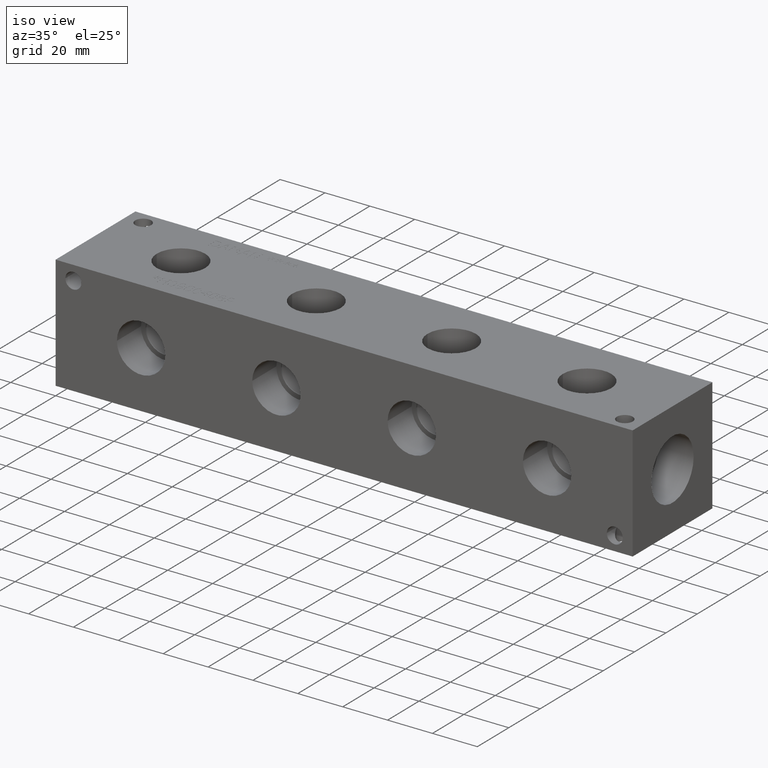
[diagram: clean part render]
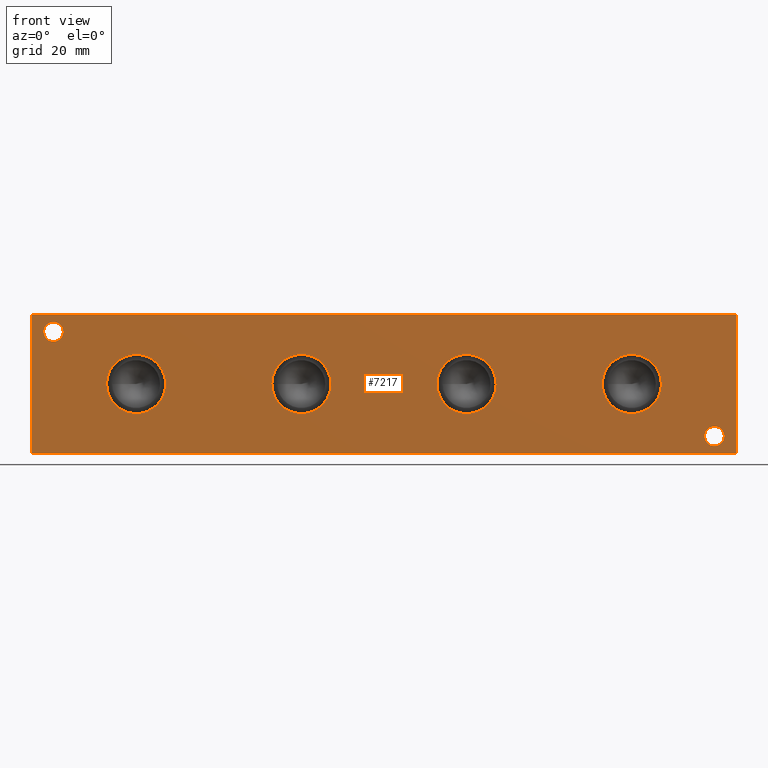
[diagram: tour spotlight — one face highlighted and labeled with its STEP entity id]
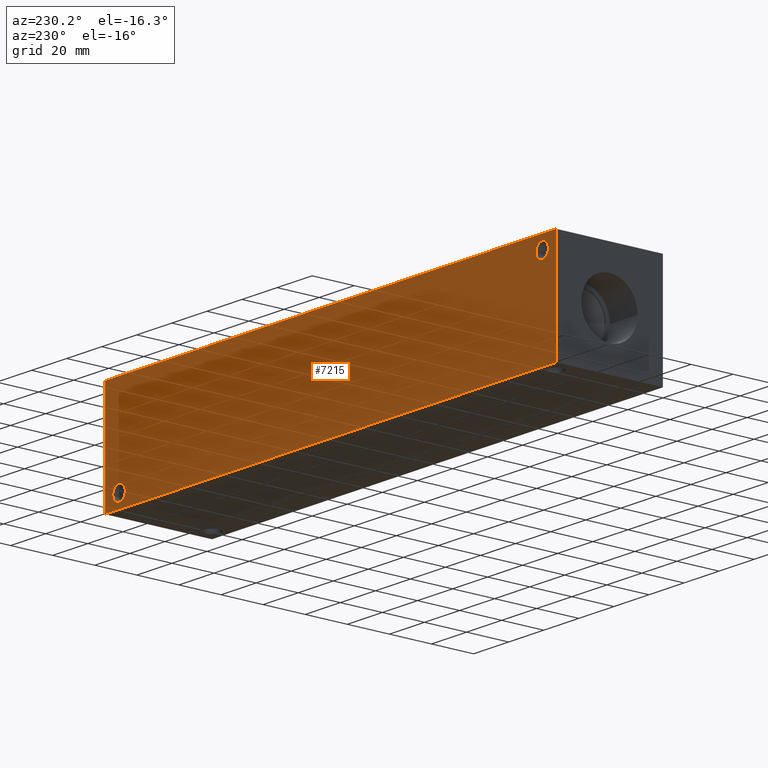
[diagram: tour spotlight — one face highlighted and labeled with its STEP entity id]
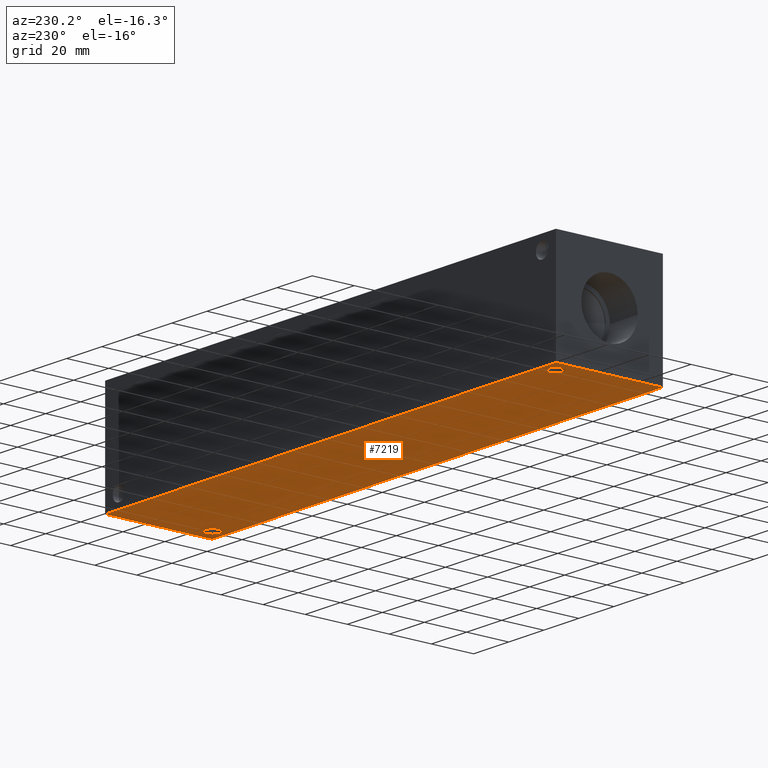
[diagram: tour spotlight — one face highlighted and labeled with its STEP entity id]
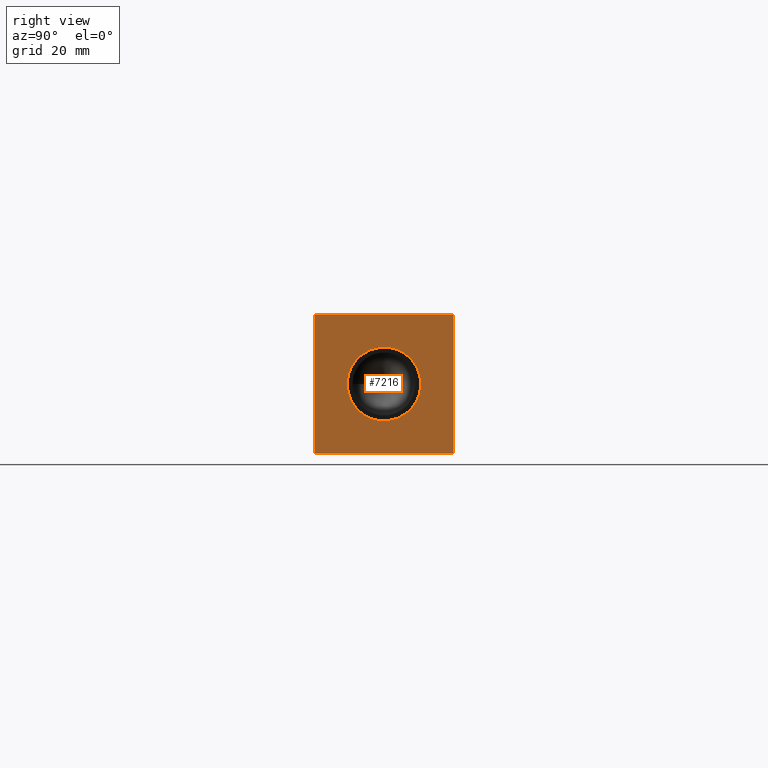
[diagram: tour spotlight — one face highlighted and labeled with its STEP entity id]
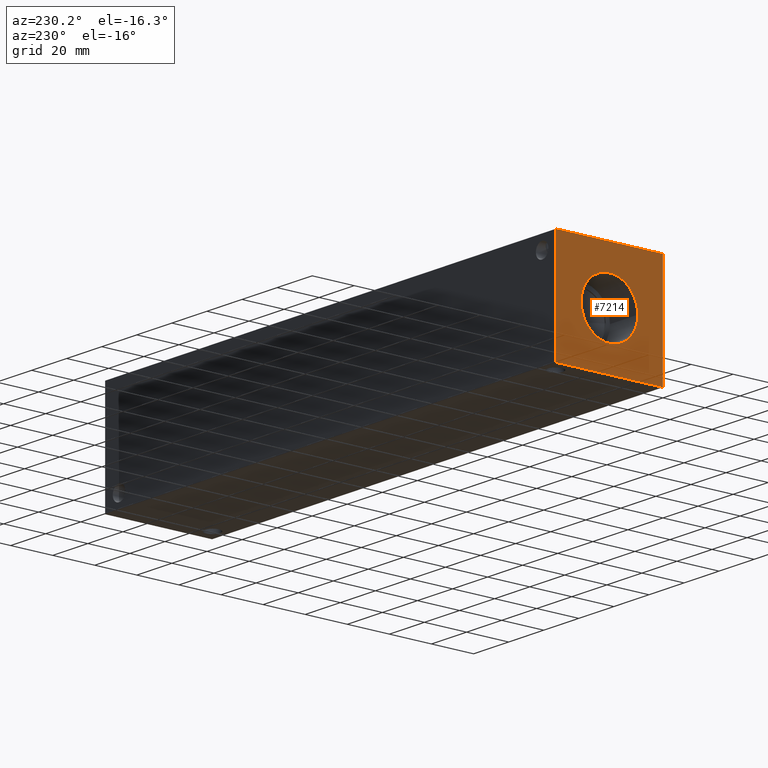
[diagram: tour spotlight — one face highlighted and labeled with its STEP entity id]
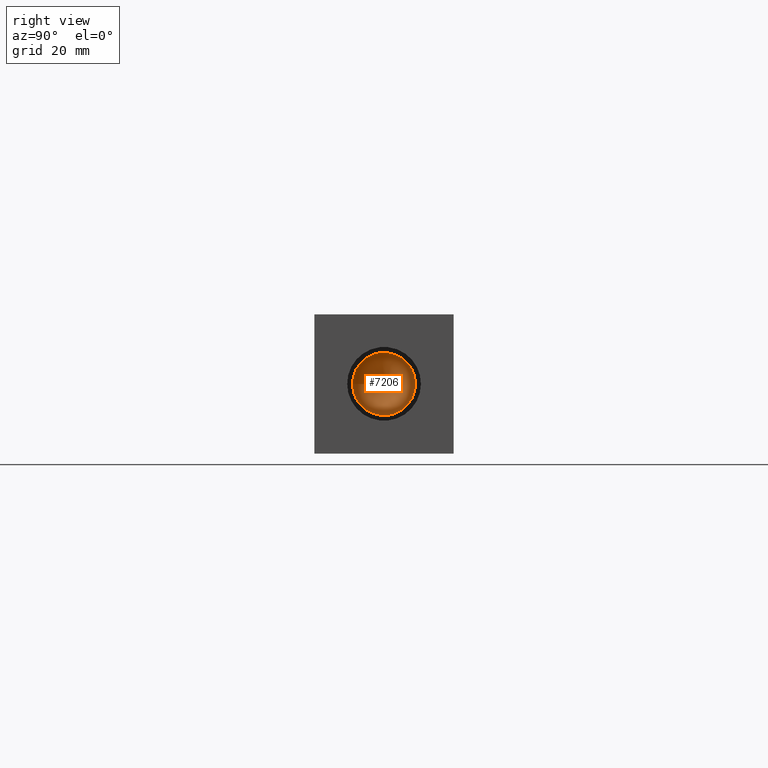
[diagram: tour spotlight — one face highlighted and labeled with its STEP entity id]
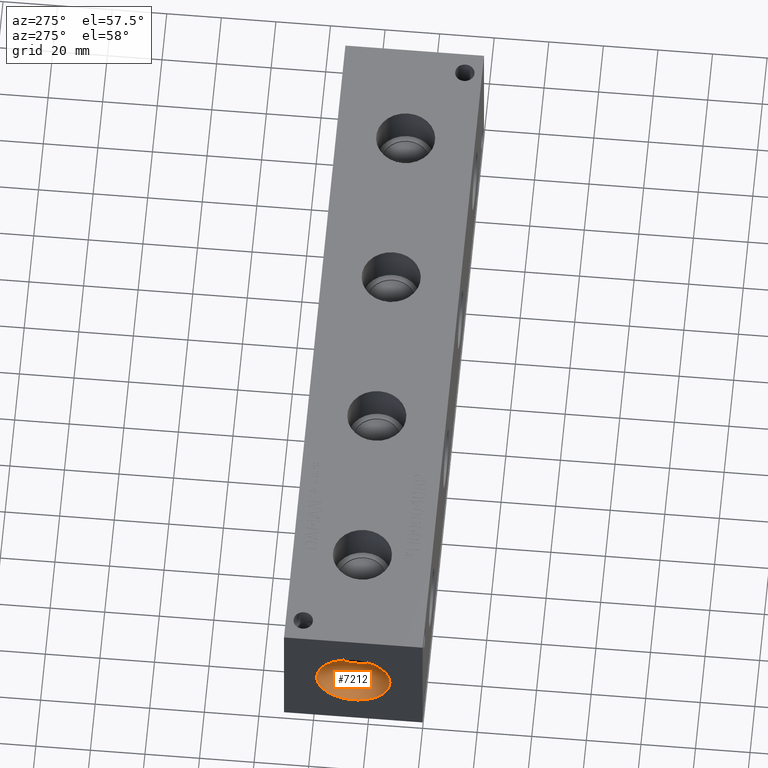
[diagram: tour spotlight — one face highlighted and labeled with its STEP entity id]
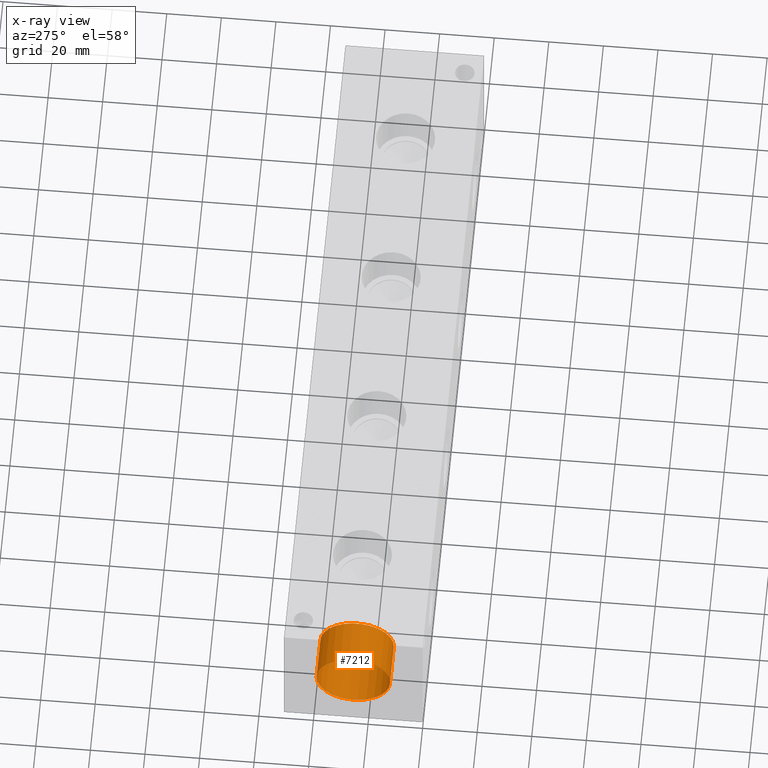
[diagram: x-ray of the same camera — body ghosted, this tour face saturated]
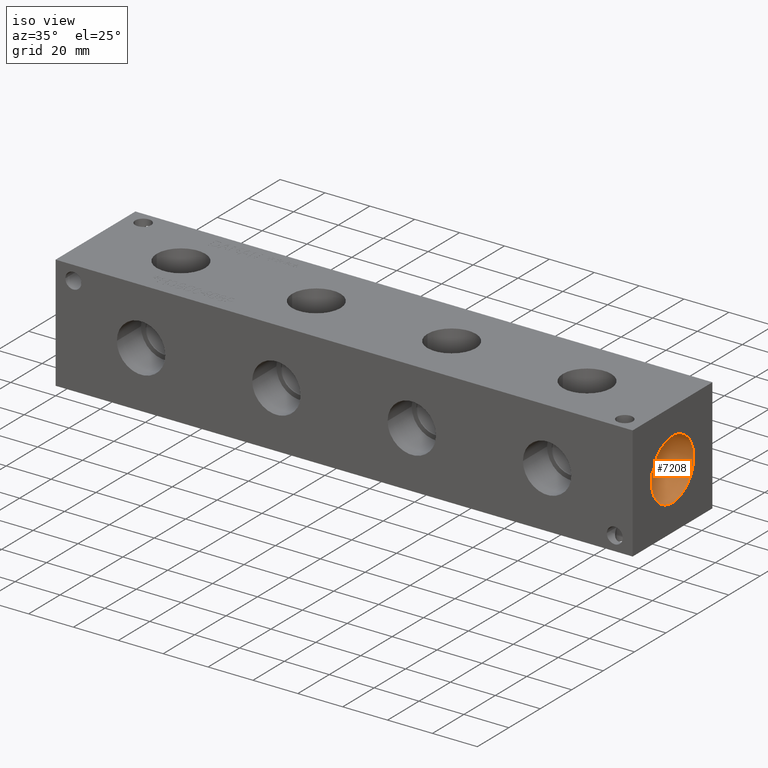
[diagram: tour spotlight — one face highlighted and labeled with its STEP entity id]
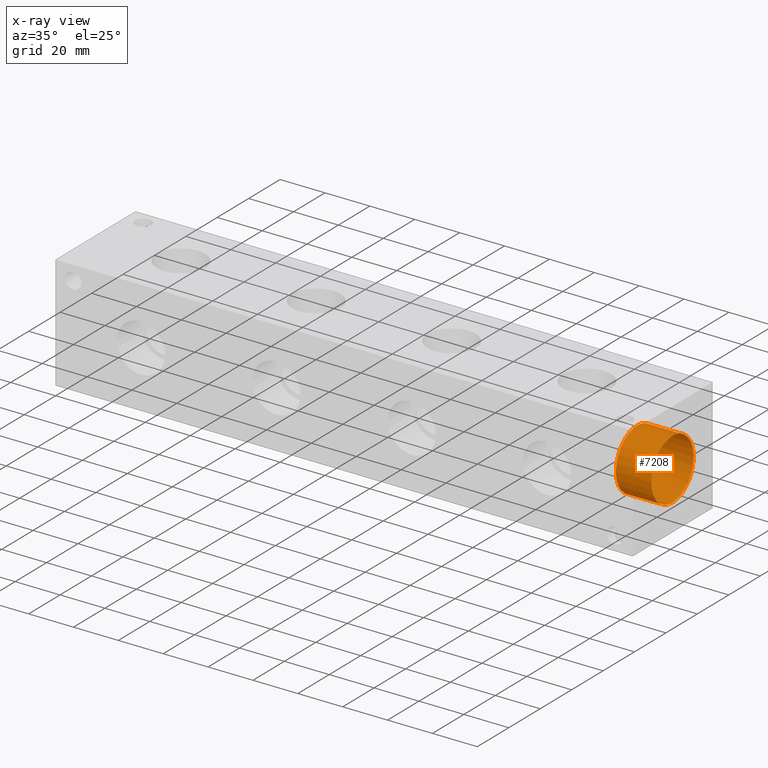
[diagram: x-ray of the same camera — body ghosted, this tour face saturated]
A machine part: a face-by-face anatomy tour. The part has 366 B-rep faces; the first image is the clean iso view, then the 8 largest visible faces are spotlighted one at a time (largest first), each with its STEP entity span.

Face 1 — front view, entity #7217. In plain terms, the highlighted planar face has unit normal (0, -1, 0).
Definition (entity closure, byte-faithful):
#76=CIRCLE('',#7457,10.795);
#77=CIRCLE('',#7458,10.795);
#83=CIRCLE('',#7469,10.795);
#84=CIRCLE('',#7470,10.795);
#90=CIRCLE('',#7481,10.795);
#91=CIRCLE('',#7482,10.795);
#97=CIRCLE('',#7493,10.795);
#98=CIRCLE('',#7494,10.795);
#112=CIRCLE('',#7517,3.5687);
#113=CIRCLE('',#7518,3.5687);
#115=CIRCLE('',#7526,3.5687);
#116=CIRCLE('',#7527,3.5687);
#197=FACE_BOUND('',#1212,.T.);
#198=FACE_BOUND('',#1213,.T.);
#199=FACE_BOUND('',#1214,.T.);
#200=FACE_BOUND('',#1215,.T.);
#201=FACE_BOUND('',#1216,.T.);
#202=FACE_BOUND('',#1217,.T.);
#428=PLANE('',#7589);
#794=FACE_OUTER_BOUND('',#1211,.T.);
#1211=EDGE_LOOP('',(#6426,#6427,#6428,#6429));
#1212=EDGE_LOOP('',(#6430,#6431));
#1213=EDGE_LOOP('',(#6432,#6433));
#1214=EDGE_LOOP('',(#6434,#6435));
#1215=EDGE_LOOP('',(#6436,#6437));
#1216=EDGE_LOOP('',(#6438,#6439));
#1217=EDGE_LOOP('',(#6440,#6441));
#1484=LINE('',#11139,#2177);
#1908=LINE('',#12339,#2601);
#1913=LINE('',#12348,#2606);
#1914=LINE('',#12350,#2607);
#2177=VECTOR('',#7990,10.);
#2601=VECTOR('',#8986,10.);
#2606=VECTOR('',#8995,10.);
#2607=VECTOR('',#8998,10.);
#3112=VERTEX_POINT('',#11137);
#3113=VERTEX_POINT('',#11138);
#3390=VERTEX_POINT('',#12080);
#3391=VERTEX_POINT('',#12081);
#3399=VERTEX_POINT('',#12105);
#3400=VERTEX_POINT('',#12106);
#3408=VERTEX_POINT('',#12130);
#3409=VERTEX_POINT('',#12131);
#3417=VERTEX_POINT('',#12155);
#3418=VERTEX_POINT('',#12156);
#3430=VERTEX_POINT('',#12200);
#3431=VERTEX_POINT('',#12201);
#3435=VERTEX_POINT('',#12216);
#3436=VERTEX_POINT('',#12217);
#3475=VERTEX_POINT('',#12337);
#3477=VERTEX_POINT('',#12346);
#3928=EDGE_CURVE('',#3112,#3113,#1484,.T.);
#4337=EDGE_CURVE('',#3390,#3391,#76,.T.);
#4338=EDGE_CURVE('',#3391,#3390,#77,.T.);
#4349=EDGE_CURVE('',#3399,#3400,#83,.T.);
#4350=EDGE_CURVE('',#3400,#3399,#84,.T.);
#4361=EDGE_CURVE('',#3408,#3409,#90,.T.);
#4362=EDGE_CURVE('',#3409,#3408,#91,.T.);
#4373=EDGE_CURVE('',#3417,#3418,#97,.T.);
#4374=EDGE_CURVE('',#3418,#3417,#98,.T.);
#4397=EDGE_CURVE('',#3430,#3431,#112,.T.);
#4398=EDGE_CURVE('',#3431,#3430,#113,.T.);
#4406=EDGE_CURVE('',#3435,#3436,#115,.T.);
#4407=EDGE_CURVE('',#3436,#3435,#116,.T.);
#4462=EDGE_CURVE('',#3475,#3112,#1908,.T.);
#4467=EDGE_CURVE('',#3477,#3113,#1913,.T.);
#4468=EDGE_CURVE('',#3475,#3477,#1914,.T.);
#6426=ORIENTED_EDGE('',*,*,#4468,.T.);
#6427=ORIENTED_EDGE('',*,*,#4467,.T.);
#6428=ORIENTED_EDGE('',*,*,#3928,.F.);
#6429=ORIENTED_EDGE('',*,*,#4462,.F.);
#6430=ORIENTED_EDGE('',*,*,#4337,.T.);
#6431=ORIENTED_EDGE('',*,*,#4338,.T.);
#6432=ORIENTED_EDGE('',*,*,#4349,.T.);
#6433=ORIENTED_EDGE('',*,*,#4350,.T.);
#6434=ORIENTED_EDGE('',*,*,#4361,.T.);
#6435=ORIENTED_EDGE('',*,*,#4362,.T.);
#6436=ORIENTED_EDGE('',*,*,#4373,.T.);
#6437=ORIENTED_EDGE('',*,*,#4374,.T.);
#6438=ORIENTED_EDGE('',*,*,#4397,.T.);
#6439=ORIENTED_EDGE('',*,*,#4398,.T.);
#6440=ORIENTED_EDGE('',*,*,#4406,.T.);
#6441=ORIENTED_EDGE('',*,*,#4407,.T.);
#7217=ADVANCED_FACE('',(#794,#197,#198,#199,#200,#201,#202),#428,.T.);
#7457=AXIS2_PLACEMENT_3D('',#12082,#8683,#8684);
#7458=AXIS2_PLACEMENT_3D('',#12083,#8685,#8686);
#7469=AXIS2_PLACEMENT_3D('',#12107,#8711,#8712);
#7470=AXIS2_PLACEMENT_3D('',#12108,#8713,#8714);
#7481=AXIS2_PLACEMENT_3D('',#12132,#8739,#8740);
#7482=AXIS2_PLACEMENT_3D('',#12133,#8741,#8742);
#7493=AXIS2_PLACEMENT_3D('',#12157,#8767,#8768);
#7494=AXIS2_PLACEMENT_3D('',#12158,#8769,#8770);
#7517=AXIS2_PLACEMENT_3D('',#12202,#8823,#8824);
#7518=AXIS2_PLACEMENT_3D('',#12203,#8825,#8826);
#7526=AXIS2_PLACEMENT_3D('',#12218,#8843,#8844);
#7527=AXIS2_PLACEMENT_3D('',#12219,#8845,#8846);
#7589=AXIS2_PLACEMENT_3D('',#12349,#8996,#8997);
#7990=DIRECTION('',(1.,0.,0.));
#8683=DIRECTION('center_axis',(0.,1.,0.));
#8684=DIRECTION('ref_axis',(1.,0.,0.));
#8685=DIRECTION('center_axis',(0.,1.,0.));
#8686=DIRECTION('ref_axis',(1.,0.,0.));
#8711=DIRECTION('center_axis',(0.,1.,0.));
#8712=DIRECTION('ref_axis',(1.,0.,0.));
#8713=DIRECTION('center_axis',(0.,1.,0.));
#8714=DIRECTION('ref_axis',(1.,0.,0.));
#8739=DIRECTION('center_axis',(0.,1.,0.));
#8740=DIRECTION('ref_axis',(1.,0.,0.));
#8741=DIRECTION('center_axis',(0.,1.,0.));
#8742=DIRECTION('ref_axis',(1.,0.,0.));
#8767=DIRECTION('center_axis',(0.,1.,0.));
#8768=DIRECTION('ref_axis',(1.,0.,0.));
#8769=DIRECTION('center_axis',(0.,1.,0.));
#8770=DIRECTION('ref_axis',(1.,0.,0.));
#8823=DIRECTION('center_axis',(0.,1.,0.));
#8824=DIRECTION('ref_axis',(1.,0.,0.));
#8825=DIRECTION('center_axis',(0.,1.,0.));
#8826=DIRECTION('ref_axis',(1.,0.,0.));
#8843=DIRECTION('center_axis',(0.,1.,0.));
#8844=DIRECTION('ref_axis',(1.,0.,0.));
#8845=DIRECTION('center_axis',(0.,1.,0.));
#8846=DIRECTION('ref_axis',(1.,0.,0.));
#8986=DIRECTION('',(0.,0.,1.));
#8995=DIRECTION('',(0.,0.,1.));
#8996=DIRECTION('center_axis',(0.,-1.,0.));
#8997=DIRECTION('ref_axis',(1.,0.,0.));
#8998=DIRECTION('',(1.,0.,0.));
#11137=CARTESIAN_POINT('',(0.,0.,50.8));
#11138=CARTESIAN_POINT('',(257.175,0.,50.8));
#11139=CARTESIAN_POINT('',(0.,0.,50.8));
#12080=CARTESIAN_POINT('',(169.545,0.,25.4));
#12081=CARTESIAN_POINT('',(147.955,0.,25.4));
#12082=CARTESIAN_POINT('Origin',(158.75,0.,25.4));
#12083=CARTESIAN_POINT('Origin',(158.75,0.,25.4));
#12105=CARTESIAN_POINT('',(48.895,0.,25.4));
#12106=CARTESIAN_POINT('',(27.305,0.,25.4));
#12107=CARTESIAN_POINT('Origin',(38.1,0.,25.4));
#12108=CARTESIAN_POINT('Origin',(38.1,0.,25.4));
#12130=CARTESIAN_POINT('',(109.22,0.,25.4));
#12131=CARTESIAN_POINT('',(87.63,0.,25.4));
#12132=CARTESIAN_POINT('Origin',(98.425,0.,25.4));
#12133=CARTESIAN_POINT('Origin',(98.425,0.,25.4));
#12155=CARTESIAN_POINT('',(229.87,0.,25.4));
#12156=CARTESIAN_POINT('',(208.28,0.,25.4));
#12157=CARTESIAN_POINT('Origin',(219.075,0.,25.4));
#12158=CARTESIAN_POINT('Origin',(219.075,0.,25.4));
#12200=CARTESIAN_POINT('',(11.4935,0.,44.45));
#12201=CARTESIAN_POINT('',(4.3561,0.,44.45));
#12202=CARTESIAN_POINT('Origin',(7.9248,0.,44.45));
#12203=CARTESIAN_POINT('Origin',(7.9248,0.,44.45));
#12216=CARTESIAN_POINT('',(252.7935,0.,6.35));
#12217=CARTESIAN_POINT('',(245.6561,0.,6.35));
#12218=CARTESIAN_POINT('Origin',(249.2248,0.,6.35));
#12219=CARTESIAN_POINT('Origin',(249.2248,0.,6.35));
#12337=CARTESIAN_POINT('',(0.,0.,0.));
#12339=CARTESIAN_POINT('',(0.,0.,0.));
#12346=CARTESIAN_POINT('',(257.175,0.,0.));
#12348=CARTESIAN_POINT('',(257.175,0.,0.));
#12349=CARTESIAN_POINT('Origin',(0.,0.,0.));
#12350=CARTESIAN_POINT('',(0.,0.,0.));

Face 2 — auxiliary view, entity #7215. In plain terms, the highlighted planar face has unit normal (0, 1, 0).
Definition (entity closure, byte-faithful):
#114=CIRCLE('',#7524,3.5687);
#117=CIRCLE('',#7533,3.5687);
#194=FACE_BOUND('',#1207,.T.);
#195=FACE_BOUND('',#1208,.T.);
#426=PLANE('',#7587);
#792=FACE_OUTER_BOUND('',#1206,.T.);
#1206=EDGE_LOOP('',(#6414,#6415,#6416,#6417));
#1207=EDGE_LOOP('',(#6418));
#1208=EDGE_LOOP('',(#6419));
#1486=LINE('',#11143,#2179);
#1909=LINE('',#12340,#2602);
#1910=LINE('',#12343,#2603);
#1911=LINE('',#12344,#2604);
#2179=VECTOR('',#7992,10.);
#2602=VECTOR('',#8987,10.);
#2603=VECTOR('',#8990,10.);
#2604=VECTOR('',#8991,10.);
#3114=VERTEX_POINT('',#11140);
#3115=VERTEX_POINT('',#11142);
#3434=VERTEX_POINT('',#12212);
#3439=VERTEX_POINT('',#12228);
#3474=VERTEX_POINT('',#12336);
#3476=VERTEX_POINT('',#12342);
#3930=EDGE_CURVE('',#3114,#3115,#1486,.T.);
#4405=EDGE_CURVE('',#3434,#3434,#114,.T.);
#4414=EDGE_CURVE('',#3439,#3439,#117,.T.);
#4463=EDGE_CURVE('',#3474,#3115,#1909,.T.);
#4464=EDGE_CURVE('',#3476,#3474,#1910,.T.);
#4465=EDGE_CURVE('',#3476,#3114,#1911,.T.);
#6414=ORIENTED_EDGE('',*,*,#4464,.T.);
#6415=ORIENTED_EDGE('',*,*,#4463,.T.);
#6416=ORIENTED_EDGE('',*,*,#3930,.F.);
#6417=ORIENTED_EDGE('',*,*,#4465,.F.);
#6418=ORIENTED_EDGE('',*,*,#4405,.T.);
#6419=ORIENTED_EDGE('',*,*,#4414,.T.);
#7215=ADVANCED_FACE('',(#792,#194,#195),#426,.T.);
#7524=AXIS2_PLACEMENT_3D('',#12214,#8839,#8840);
#7533=AXIS2_PLACEMENT_3D('',#12230,#8859,#8860);
#7587=AXIS2_PLACEMENT_3D('',#12341,#8988,#8989);
#7992=DIRECTION('',(-1.,0.,0.));
#8839=DIRECTION('center_axis',(0.,-1.,0.));
#8840=DIRECTION('ref_axis',(1.,0.,0.));
#8859=DIRECTION('center_axis',(0.,-1.,0.));
#8860=DIRECTION('ref_axis',(1.,0.,0.));
#8987=DIRECTION('',(0.,0.,1.));
#8988=DIRECTION('center_axis',(0.,1.,0.));
#8989=DIRECTION('ref_axis',(-1.,0.,0.));
#8990=DIRECTION('',(-1.,0.,0.));
#8991=DIRECTION('',(0.,0.,1.));
#11140=CARTESIAN_POINT('',(257.175,50.8,50.8));
#11142=CARTESIAN_POINT('',(0.,50.8,50.8));
#11143=CARTESIAN_POINT('',(257.175,50.8,50.8));
#12212=CARTESIAN_POINT('',(4.3561,50.8,44.45));
#12214=CARTESIAN_POINT('Origin',(7.9248,50.8,44.45));
#12228=CARTESIAN_POINT('',(245.6561,50.8,6.35));
#12230=CARTESIAN_POINT('Origin',(249.2248,50.8,6.35));
#12336=CARTESIAN_POINT('',(0.,50.8,0.));
#12340=CARTESIAN_POINT('',(0.,50.8,0.));
#12341=CARTESIAN_POINT('Origin',(257.175,50.8,0.));
#12342=CARTESIAN_POINT('',(257.175,50.8,0.));
#12343=CARTESIAN_POINT('',(257.175,50.8,0.));
#12344=CARTESIAN_POINT('',(257.175,50.8,0.));

Face 3 — auxiliary view, entity #7219. In plain terms, the highlighted planar face has unit normal (0, 0, 1).
Definition (entity closure, byte-faithful):
#118=CIRCLE('',#7537,3.5687);
#119=CIRCLE('',#7539,3.5687);
#203=FACE_BOUND('',#1220,.T.);
#204=FACE_BOUND('',#1221,.T.);
#430=PLANE('',#7591);
#796=FACE_OUTER_BOUND('',#1219,.T.);
#1219=EDGE_LOOP('',(#6445,#6446,#6447,#6448));
#1220=EDGE_LOOP('',(#6449));
#1221=EDGE_LOOP('',(#6450));
#1907=LINE('',#12338,#2600);
#1910=LINE('',#12343,#2603);
#1912=LINE('',#12347,#2605);
#1914=LINE('',#12350,#2607);
#2600=VECTOR('',#8985,10.);
#2603=VECTOR('',#8990,10.);
#2605=VECTOR('',#8994,10.);
#2607=VECTOR('',#8998,10.);
#3440=VERTEX_POINT('',#12236);
#3441=VERTEX_POINT('',#12240);
#3474=VERTEX_POINT('',#12336);
#3475=VERTEX_POINT('',#12337);
#3476=VERTEX_POINT('',#12342);
#3477=VERTEX_POINT('',#12346);
#4418=EDGE_CURVE('',#3440,#3440,#118,.T.);
#4420=EDGE_CURVE('',#3441,#3441,#119,.T.);
#4461=EDGE_CURVE('',#3474,#3475,#1907,.T.);
#4464=EDGE_CURVE('',#3476,#3474,#1910,.T.);
#4466=EDGE_CURVE('',#3477,#3476,#1912,.T.);
#4468=EDGE_CURVE('',#3475,#3477,#1914,.T.);
#6445=ORIENTED_EDGE('',*,*,#4468,.F.);
#6446=ORIENTED_EDGE('',*,*,#4461,.F.);
#6447=ORIENTED_EDGE('',*,*,#4464,.F.);
#6448=ORIENTED_EDGE('',*,*,#4466,.F.);
#6449=ORIENTED_EDGE('',*,*,#4418,.T.);
#6450=ORIENTED_EDGE('',*,*,#4420,.T.);
#7219=ADVANCED_FACE('',(#796,#203,#204),#430,.F.);
#7537=AXIS2_PLACEMENT_3D('',#12238,#8870,#8871);
#7539=AXIS2_PLACEMENT_3D('',#12242,#8875,#8876);
#7591=AXIS2_PLACEMENT_3D('',#12352,#9001,#9002);
#8870=DIRECTION('center_axis',(0.,0.,1.));
#8871=DIRECTION('ref_axis',(1.,0.,0.));
#8875=DIRECTION('center_axis',(0.,0.,1.));
#8876=DIRECTION('ref_axis',(1.,0.,0.));
#8985=DIRECTION('',(0.,-1.,0.));
#8990=DIRECTION('',(-1.,0.,0.));
#8994=DIRECTION('',(0.,1.,0.));
#8998=DIRECTION('',(1.,0.,0.));
#9001=DIRECTION('center_axis',(0.,0.,1.));
#9002=DIRECTION('ref_axis',(1.,0.,0.));
#12236=CARTESIAN_POINT('',(4.3561,44.45,0.));
#12238=CARTESIAN_POINT('Origin',(7.9248,44.45,0.));
#12240=CARTESIAN_POINT('',(245.6561,6.35,0.));
#12242=CARTESIAN_POINT('Origin',(249.2248,6.35,0.));
#12336=CARTESIAN_POINT('',(0.,50.8,0.));
#12337=CARTESIAN_POINT('',(0.,0.,0.));
#12338=CARTESIAN_POINT('',(0.,50.8,0.));
#12342=CARTESIAN_POINT('',(257.175,50.8,0.));
#12343=CARTESIAN_POINT('',(257.175,50.8,0.));
#12346=CARTESIAN_POINT('',(257.175,0.,0.));
#12347=CARTESIAN_POINT('',(257.175,0.,0.));
#12350=CARTESIAN_POINT('',(0.,0.,0.));
#12352=CARTESIAN_POINT('Origin',(128.5875,25.4,0.));

Face 4 — right view, entity #7216. In plain terms, the highlighted planar face has unit normal (1, 0, 0).
Definition (entity closure, byte-faithful):
#137=CIRCLE('',#7572,13.462);
#138=CIRCLE('',#7573,13.462);
#196=FACE_BOUND('',#1210,.T.);
#427=PLANE('',#7588);
#793=FACE_OUTER_BOUND('',#1209,.T.);
#1209=EDGE_LOOP('',(#6420,#6421,#6422,#6423));
#1210=EDGE_LOOP('',(#6424,#6425));
#1485=LINE('',#11141,#2178);
#1911=LINE('',#12344,#2604);
#1912=LINE('',#12347,#2605);
#1913=LINE('',#12348,#2606);
#2178=VECTOR('',#7991,10.);
#2604=VECTOR('',#8991,10.);
#2605=VECTOR('',#8994,10.);
#2606=VECTOR('',#8995,10.);
#3113=VERTEX_POINT('',#11138);
#3114=VERTEX_POINT('',#11140);
#3464=VERTEX_POINT('',#12306);
#3465=VERTEX_POINT('',#12307);
#3476=VERTEX_POINT('',#12342);
#3477=VERTEX_POINT('',#12346);
#3929=EDGE_CURVE('',#3113,#3114,#1485,.T.);
#4447=EDGE_CURVE('',#3464,#3465,#137,.T.);
#4448=EDGE_CURVE('',#3465,#3464,#138,.T.);
#4465=EDGE_CURVE('',#3476,#3114,#1911,.T.);
#4466=EDGE_CURVE('',#3477,#3476,#1912,.T.);
#4467=EDGE_CURVE('',#3477,#3113,#1913,.T.);
#6420=ORIENTED_EDGE('',*,*,#4466,.T.);
#6421=ORIENTED_EDGE('',*,*,#4465,.T.);
#6422=ORIENTED_EDGE('',*,*,#3929,.F.);
#6423=ORIENTED_EDGE('',*,*,#4467,.F.);
#6424=ORIENTED_EDGE('',*,*,#4447,.T.);
#6425=ORIENTED_EDGE('',*,*,#4448,.T.);
#7216=ADVANCED_FACE('',(#793,#196),#427,.T.);
#7572=AXIS2_PLACEMENT_3D('',#12308,#8950,#8951);
#7573=AXIS2_PLACEMENT_3D('',#12309,#8952,#8953);
#7588=AXIS2_PLACEMENT_3D('',#12345,#8992,#8993);
#7991=DIRECTION('',(0.,1.,0.));
#8950=DIRECTION('center_axis',(-1.,0.,0.));
#8951=DIRECTION('ref_axis',(0.,1.,0.));
#8952=DIRECTION('center_axis',(-1.,0.,0.));
#8953=DIRECTION('ref_axis',(0.,1.,0.));
#8991=DIRECTION('',(0.,0.,1.));
#8992=DIRECTION('center_axis',(1.,0.,0.));
#8993=DIRECTION('ref_axis',(0.,1.,0.));
#8994=DIRECTION('',(0.,1.,0.));
#8995=DIRECTION('',(0.,0.,1.));
#11138=CARTESIAN_POINT('',(257.175,0.,50.8));
#11140=CARTESIAN_POINT('',(257.175,50.8,50.8));
#11141=CARTESIAN_POINT('',(257.175,0.,50.8));
#12306=CARTESIAN_POINT('',(257.175,38.862,25.4));
#12307=CARTESIAN_POINT('',(257.175,11.938,25.4));
#12308=CARTESIAN_POINT('Origin',(257.175,25.4,25.4));
#12309=CARTESIAN_POINT('Origin',(257.175,25.4,25.4));
#12342=CARTESIAN_POINT('',(257.175,50.8,0.));
#12344=CARTESIAN_POINT('',(257.175,50.8,0.));
#12345=CARTESIAN_POINT('Origin',(257.175,0.,0.));
#12346=CARTESIAN_POINT('',(257.175,0.,0.));
#12347=CARTESIAN_POINT('',(257.175,0.,0.));
#12348=CARTESIAN_POINT('',(257.175,0.,0.));

Face 5 — auxiliary view, entity #7214. In plain terms, the highlighted planar face has unit normal (-1, 0, 0).
Definition (entity closure, byte-faithful):
#144=CIRCLE('',#7583,13.462);
#145=CIRCLE('',#7584,13.462);
#193=FACE_BOUND('',#1205,.T.);
#425=PLANE('',#7586);
#791=FACE_OUTER_BOUND('',#1204,.T.);
#1204=EDGE_LOOP('',(#6408,#6409,#6410,#6411));
#1205=EDGE_LOOP('',(#6412,#6413));
#1487=LINE('',#11144,#2180);
#1907=LINE('',#12338,#2600);
#1908=LINE('',#12339,#2601);
#1909=LINE('',#12340,#2602);
#2180=VECTOR('',#7993,10.);
#2600=VECTOR('',#8985,10.);
#2601=VECTOR('',#8986,10.);
#2602=VECTOR('',#8987,10.);
#3112=VERTEX_POINT('',#11137);
#3115=VERTEX_POINT('',#11142);
#3472=VERTEX_POINT('',#12328);
#3473=VERTEX_POINT('',#12329);
#3474=VERTEX_POINT('',#12336);
#3475=VERTEX_POINT('',#12337);
#3931=EDGE_CURVE('',#3115,#3112,#1487,.T.);
#4457=EDGE_CURVE('',#3472,#3473,#144,.T.);
#4458=EDGE_CURVE('',#3473,#3472,#145,.T.);
#4461=EDGE_CURVE('',#3474,#3475,#1907,.T.);
#4462=EDGE_CURVE('',#3475,#3112,#1908,.T.);
#4463=EDGE_CURVE('',#3474,#3115,#1909,.T.);
#6408=ORIENTED_EDGE('',*,*,#4461,.T.);
#6409=ORIENTED_EDGE('',*,*,#4462,.T.);
#6410=ORIENTED_EDGE('',*,*,#3931,.F.);
#6411=ORIENTED_EDGE('',*,*,#4463,.F.);
#6412=ORIENTED_EDGE('',*,*,#4457,.T.);
#6413=ORIENTED_EDGE('',*,*,#4458,.T.);
#7214=ADVANCED_FACE('',(#791,#193),#425,.T.);
#7583=AXIS2_PLACEMENT_3D('',#12330,#8975,#8976);
#7584=AXIS2_PLACEMENT_3D('',#12331,#8977,#8978);
#7586=AXIS2_PLACEMENT_3D('',#12335,#8983,#8984);
#7993=DIRECTION('',(0.,-1.,0.));
#8975=DIRECTION('center_axis',(1.,0.,0.));
#8976=DIRECTION('ref_axis',(0.,1.,0.));
#8977=DIRECTION('center_axis',(1.,0.,0.));
#8978=DIRECTION('ref_axis',(0.,1.,0.));
#8983=DIRECTION('center_axis',(-1.,0.,0.));
#8984=DIRECTION('ref_axis',(0.,-1.,0.));
#8985=DIRECTION('',(0.,-1.,0.));
#8986=DIRECTION('',(0.,0.,1.));
#8987=DIRECTION('',(0.,0.,1.));
#11137=CARTESIAN_POINT('',(0.,0.,50.8));
#11142=CARTESIAN_POINT('',(0.,50.8,50.8));
#11144=CARTESIAN_POINT('',(0.,50.8,50.8));
#12328=CARTESIAN_POINT('',(0.,38.862,25.4));
#12329=CARTESIAN_POINT('',(1.11022302462516E-15,11.938,25.4));
#12330=CARTESIAN_POINT('Origin',(0.,25.4,25.4));
#12331=CARTESIAN_POINT('Origin',(0.,25.4,25.4));
#12335=CARTESIAN_POINT('Origin',(0.,50.8,0.));
#12336=CARTESIAN_POINT('',(0.,50.8,0.));
#12337=CARTESIAN_POINT('',(0.,0.,0.));
#12338=CARTESIAN_POINT('',(0.,50.8,0.));
#12339=CARTESIAN_POINT('',(0.,0.,0.));
#12340=CARTESIAN_POINT('',(0.,50.8,0.));

Face 6 — right view, entity #7206. In plain terms, the highlighted conical surface has half-angle 60 deg.
Definition (entity closure, byte-faithful):
#22=CONICAL_SURFACE('',#7564,5.7531,1.0471975511966);
#132=CIRCLE('',#7565,11.5062);
#133=CIRCLE('',#7566,11.5062);
#783=FACE_OUTER_BOUND('',#1194,.T.);
#1194=EDGE_LOOP('',(#6372,#6373,#6374,#6375));
#1901=LINE('',#12296,#2594);
#2594=VECTOR('',#8937,5.7531);
#3458=VERTEX_POINT('',#12292);
#3459=VERTEX_POINT('',#12293);
#3460=VERTEX_POINT('',#12295);
#4441=EDGE_CURVE('',#3458,#3459,#132,.T.);
#4442=EDGE_CURVE('',#3459,#3460,#1901,.T.);
#4443=EDGE_CURVE('',#3459,#3458,#133,.T.);
#6372=ORIENTED_EDGE('',*,*,#4441,.T.);
#6373=ORIENTED_EDGE('',*,*,#4442,.T.);
#6374=ORIENTED_EDGE('',*,*,#4442,.F.);
#6375=ORIENTED_EDGE('',*,*,#4443,.T.);
#7206=ADVANCED_FACE('',(#783),#22,.F.);
#7564=AXIS2_PLACEMENT_3D('',#12291,#8933,#8934);
#7565=AXIS2_PLACEMENT_3D('',#12294,#8935,#8936);
#7566=AXIS2_PLACEMENT_3D('',#12297,#8938,#8939);
#8933=DIRECTION('center_axis',(1.,0.,0.));
#8934=DIRECTION('ref_axis',(0.,1.,0.));
#8935=DIRECTION('center_axis',(1.,0.,0.));
#8936=DIRECTION('ref_axis',(0.,1.,0.));
#8937=DIRECTION('',(-0.5,0.866025403784439,1.06057523872491E-16));
#8938=DIRECTION('center_axis',(1.,0.,0.));
#8939=DIRECTION('ref_axis',(0.,1.,0.));
#12291=CARTESIAN_POINT('Origin',(237.339536166325,25.4,25.4));
#12292=CARTESIAN_POINT('',(240.66109,36.9062,25.4));
#12293=CARTESIAN_POINT('',(240.66109,13.8938,25.4));
#12294=CARTESIAN_POINT('Origin',(240.66109,25.4,25.4));
#12295=CARTESIAN_POINT('',(234.01798233265,25.4,25.4));
#12296=CARTESIAN_POINT('',(237.339536166325,19.6469,25.4));
#12297=CARTESIAN_POINT('Origin',(240.66109,25.4,25.4));

Face 7 — auxiliary view, entity #7212. An x-ray twin of the same camera follows (body ghosted, this face saturated) — the face is partly hidden behind the body. In plain terms, the highlighted cylindrical surface (bore or boss wall) has radius 13.462 mm, axis along (-1, 0, 0).
Definition (entity closure, byte-faithful):
#62=CYLINDRICAL_SURFACE('',#7582,13.462);
#141=CIRCLE('',#7579,13.462);
#142=CIRCLE('',#7580,13.462);
#144=CIRCLE('',#7583,13.462);
#145=CIRCLE('',#7584,13.462);
#789=FACE_OUTER_BOUND('',#1202,.T.);
#1202=EDGE_LOOP('',(#6397,#6398,#6399,#6400,#6401,#6402));
#1905=LINE('',#12332,#2598);
#2598=VECTOR('',#8979,13.462);
#3469=VERTEX_POINT('',#12321);
#3470=VERTEX_POINT('',#12322);
#3472=VERTEX_POINT('',#12328);
#3473=VERTEX_POINT('',#12329);
#4454=EDGE_CURVE('',#3469,#3470,#141,.T.);
#4455=EDGE_CURVE('',#3470,#3469,#142,.T.);
#4457=EDGE_CURVE('',#3472,#3473,#144,.T.);
#4458=EDGE_CURVE('',#3473,#3472,#145,.T.);
#4459=EDGE_CURVE('',#3473,#3470,#1905,.T.);
#6397=ORIENTED_EDGE('',*,*,#4457,.F.);
#6398=ORIENTED_EDGE('',*,*,#4458,.F.);
#6399=ORIENTED_EDGE('',*,*,#4459,.T.);
#6400=ORIENTED_EDGE('',*,*,#4454,.F.);
#6401=ORIENTED_EDGE('',*,*,#4455,.F.);
#6402=ORIENTED_EDGE('',*,*,#4459,.F.);
#7212=ADVANCED_FACE('',(#789),#62,.F.);
#7579=AXIS2_PLACEMENT_3D('',#12323,#8967,#8968);
#7580=AXIS2_PLACEMENT_3D('',#12324,#8969,#8970);
#7582=AXIS2_PLACEMENT_3D('',#12327,#8973,#8974);
#7583=AXIS2_PLACEMENT_3D('',#12330,#8975,#8976);
#7584=AXIS2_PLACEMENT_3D('',#12331,#8977,#8978);
#8967=DIRECTION('center_axis',(-1.,0.,0.));
#8968=DIRECTION('ref_axis',(0.,1.,0.));
#8969=DIRECTION('center_axis',(-1.,0.,0.));
#8970=DIRECTION('ref_axis',(0.,1.,0.));
#8973=DIRECTION('center_axis',(-1.,0.,0.));
#8974=DIRECTION('ref_axis',(0.,1.,0.));
#8975=DIRECTION('center_axis',(1.,0.,0.));
#8976=DIRECTION('ref_axis',(0.,1.,0.));
#8977=DIRECTION('center_axis',(1.,0.,0.));
#8978=DIRECTION('ref_axis',(0.,1.,0.));
#8979=DIRECTION('',(1.,0.,0.));
#12321=CARTESIAN_POINT('',(15.8496,38.862,25.4));
#12322=CARTESIAN_POINT('',(15.8496,11.938,25.4));
#12323=CARTESIAN_POINT('Origin',(15.8496,25.4,25.4));
#12324=CARTESIAN_POINT('Origin',(15.8496,25.4,25.4));
#12327=CARTESIAN_POINT('Origin',(7.9248,25.4,25.4));
#12328=CARTESIAN_POINT('',(0.,38.862,25.4));
#12329=CARTESIAN_POINT('',(1.11022302462516E-15,11.938,25.4));
#12330=CARTESIAN_POINT('Origin',(0.,25.4,25.4));
#12331=CARTESIAN_POINT('Origin',(0.,25.4,25.4));
#12332=CARTESIAN_POINT('',(7.9248,11.938,25.4));

Face 8 — iso view, entity #7208. An x-ray twin of the same camera follows (body ghosted, this face saturated) — the face is partly hidden behind the body. In plain terms, the highlighted cylindrical surface (bore or boss wall) has radius 13.462 mm, axis along (1, 0, 0).
Definition (entity closure, byte-faithful):
#60=CYLINDRICAL_SURFACE('',#7571,13.462);
#134=CIRCLE('',#7568,13.462);
#135=CIRCLE('',#7569,13.462);
#137=CIRCLE('',#7572,13.462);
#138=CIRCLE('',#7573,13.462);
#785=FACE_OUTER_BOUND('',#1197,.T.);
#1197=EDGE_LOOP('',(#6379,#6380,#6381,#6382,#6383,#6384));
#1902=LINE('',#12310,#2595);
#2595=VECTOR('',#8954,13.462);
#3461=VERTEX_POINT('',#12299);
#3462=VERTEX_POINT('',#12300);
#3464=VERTEX_POINT('',#12306);
#3465=VERTEX_POINT('',#12307);
#4444=EDGE_CURVE('',#3461,#3462,#134,.T.);
#4445=EDGE_CURVE('',#3462,#3461,#135,.T.);
#4447=EDGE_CURVE('',#3464,#3465,#137,.T.);
#4448=EDGE_CURVE('',#3465,#3464,#138,.T.);
#4449=EDGE_CURVE('',#3465,#3462,#1902,.T.);
#6379=ORIENTED_EDGE('',*,*,#4447,.F.);
#6380=ORIENTED_EDGE('',*,*,#4448,.F.);
#6381=ORIENTED_EDGE('',*,*,#4449,.T.);
#6382=ORIENTED_EDGE('',*,*,#4444,.F.);
#6383=ORIENTED_EDGE('',*,*,#4445,.F.);
#6384=ORIENTED_EDGE('',*,*,#4449,.F.);
#7208=ADVANCED_FACE('',(#785),#60,.F.);
#7568=AXIS2_PLACEMENT_3D('',#12301,#8942,#8943);
#7569=AXIS2_PLACEMENT_3D('',#12302,#8944,#8945);
#7571=AXIS2_PLACEMENT_3D('',#12305,#8948,#8949);
#7572=AXIS2_PLACEMENT_3D('',#12308,#8950,#8951);
#7573=AXIS2_PLACEMENT_3D('',#12309,#8952,#8953);
#8942=DIRECTION('center_axis',(1.,0.,0.));
#8943=DIRECTION('ref_axis',(0.,1.,0.));
#8944=DIRECTION('center_axis',(1.,0.,0.));
#8945=DIRECTION('ref_axis',(0.,1.,0.));
#8948=DIRECTION('center_axis',(1.,0.,0.));
#8949=DIRECTION('ref_axis',(0.,1.,0.));
#8950=DIRECTION('center_axis',(-1.,0.,0.));
#8951=DIRECTION('ref_axis',(0.,1.,0.));
#8952=DIRECTION('center_axis',(-1.,0.,0.));
#8953=DIRECTION('ref_axis',(0.,1.,0.));
#8954=DIRECTION('',(-1.,0.,0.));
#12299=CARTESIAN_POINT('',(241.3254,38.862,25.4));
#12300=CARTESIAN_POINT('',(241.3254,11.938,25.4));
#12301=CARTESIAN_POINT('Origin',(241.3254,25.4,25.4));
#12302=CARTESIAN_POINT('Origin',(241.3254,25.4,25.4));
#12305=CARTESIAN_POINT('Origin',(249.2502,25.4,25.4));
#12306=CARTESIAN_POINT('',(257.175,38.862,25.4));
#12307=CARTESIAN_POINT('',(257.175,11.938,25.4));
#12308=CARTESIAN_POINT('Origin',(257.175,25.4,25.4));
#12309=CARTESIAN_POINT('Origin',(257.175,25.4,25.4));
#12310=CARTESIAN_POINT('',(249.2502,11.938,25.4));